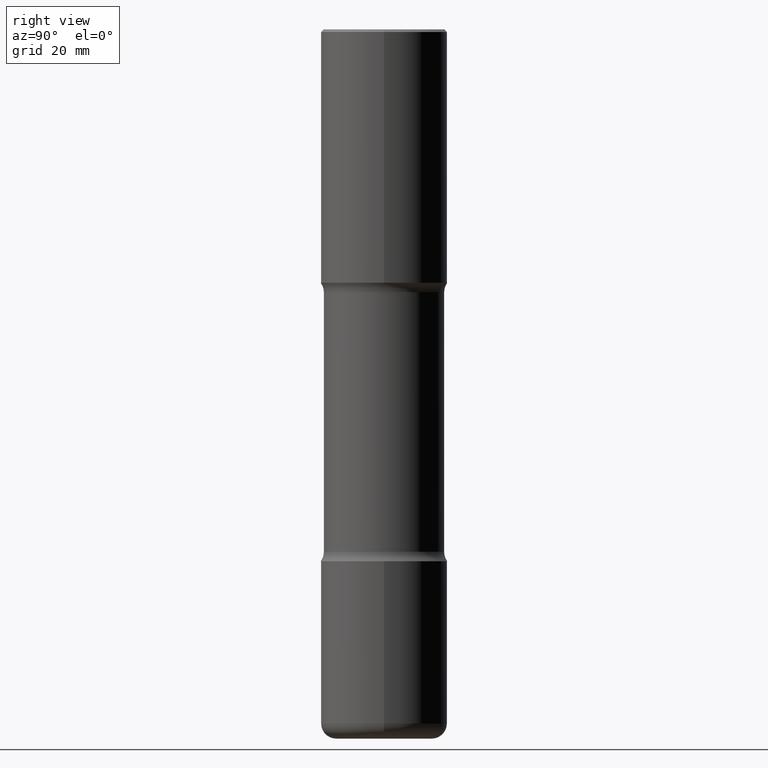
[diagram: clean part render]
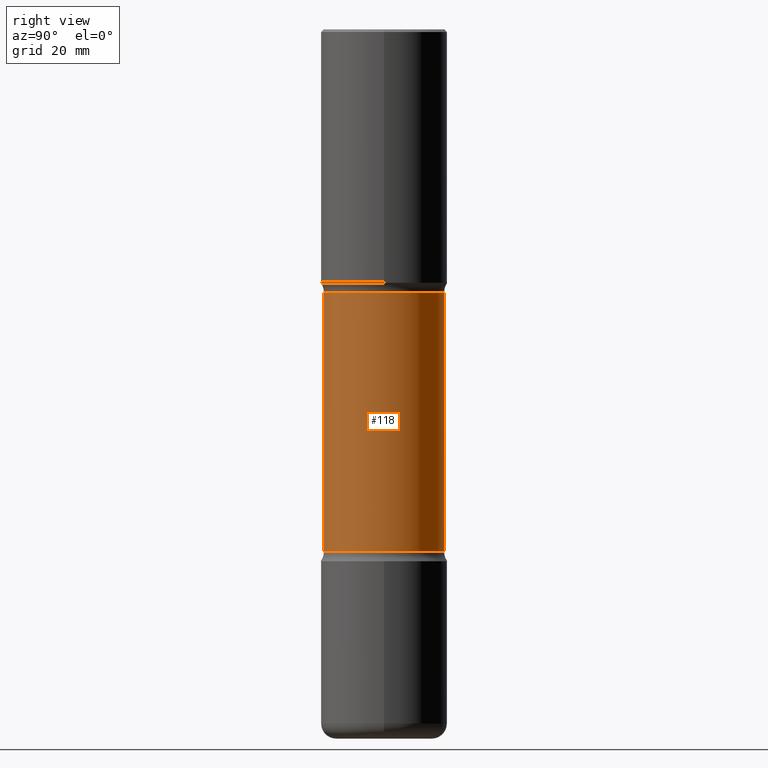
[diagram: same view with one face highlighted and labeled with its STEP entity id]
A machine part, right view. The second image highlights one B-rep face of the part: STEP entity #118.
In plain terms, the highlighted cylindrical surface (partial cylindrical patch) has radius 11.8745 mm, axis along (0, -0, -1).
Its self-contained STEP definition (entity closure, byte-faithful):
#17 = VERTEX_POINT ( 'NONE', #548 ) ;
#40 = AXIS2_PLACEMENT_3D ( 'NONE', #153, #103, #156 ) ;
#43 = FACE_OUTER_BOUND ( 'NONE', #329, .T. ) ;
#86 = AXIS2_PLACEMENT_3D ( 'NONE', #377, #328, #503 ) ;
#103 = DIRECTION ( 'NONE',  ( 2.569765813720951550E-29, -3.313480949505536246E-15, -1.000000000000000000 ) ) ;
#108 = CIRCLE ( 'NONE', #40, 0.4675000000000001932 ) ;
#118 = ADVANCED_FACE ( 'NONE', ( #43 ), #486, .T. ) ;
#146 = LINE ( 'NONE', #181, #382 ) ;
#153 = CARTESIAN_POINT ( 'NONE',  ( 4.736292380389705471E-29, -7.505362474776508302E-15, -2.043031050576253893 ) ) ;
#156 = DIRECTION ( 'NONE',  ( 6.982962677686265133E-15, 1.000000000000000000, -3.506115072082475215E-15 ) ) ;
#163 = EDGE_CURVE ( 'NONE', #17, #414, #223, .T. ) ;
#165 = VERTEX_POINT ( 'NONE', #305 ) ;
#178 = CIRCLE ( 'NONE', #86, 0.4674999999999999156 ) ;
#181 = CARTESIAN_POINT ( 'NONE',  ( -3.207282813958054974E-15, -0.4675000000000190670, -5.511799999999999145 ) ) ;
#223 = LINE ( 'NONE', #303, #288 ) ;
#230 = DIRECTION ( 'NONE',  ( 2.569765813720951550E-29, -3.313480949505536246E-15, -1.000000000000000000 ) ) ;
#236 = ORIENTED_EDGE ( 'NONE', *, *, #455, .F. ) ;
#284 = ORIENTED_EDGE ( 'NONE', *, *, #527, .T. ) ;
#288 = VECTOR ( 'NONE', #230, 39.37007874015748143 ) ;
#290 = VERTEX_POINT ( 'NONE', #417 ) ;
#303 = CARTESIAN_POINT ( 'NONE',  ( 3.264535051818466476E-15, 0.4674999999999810973, -5.511800000000000921 ) ) ;
#305 = CARTESIAN_POINT ( 'NONE',  ( -3.291838451780682059E-15, -0.4675000000000077982, -2.043031050576252117 ) ) ;
#313 = DIRECTION ( 'NONE',  ( 2.569765813720951550E-29, -3.313480949505536246E-15, -1.000000000000000000 ) ) ;
#328 = DIRECTION ( 'NONE',  ( 2.569765813720951550E-29, -3.313480949505536246E-15, -1.000000000000000000 ) ) ;
#329 = EDGE_LOOP ( 'NONE', ( #409, #284, #236, #369 ) ) ;
#330 = EDGE_CURVE ( 'NONE', #17, #165, #108, .T. ) ;
#337 = CARTESIAN_POINT ( 'NONE',  ( 3.264535051818428216E-15, 0.4674999999999857048, -4.059268949423748829 ) ) ;
#343 = DIRECTION ( 'NONE',  ( 2.569765813720951550E-29, -3.313480949505536246E-15, -1.000000000000000000 ) ) ;
#369 = ORIENTED_EDGE ( 'NONE', *, *, #163, .F. ) ;
#377 = CARTESIAN_POINT ( 'NONE',  ( 9.917551605176555751E-29, -1.418612834227874970E-14, -4.059268949423747053 ) ) ;
#382 = VECTOR ( 'NONE', #343, 39.37007874015748143 ) ;
#409 = ORIENTED_EDGE ( 'NONE', *, *, #330, .T. ) ;
#414 = VERTEX_POINT ( 'NONE', #337 ) ;
#417 = CARTESIAN_POINT ( 'NONE',  ( -3.291838451780624078E-15, -0.4675000000000141265, -4.059268949423745276 ) ) ;
#445 = CARTESIAN_POINT ( 'NONE',  ( 1.365021624231558916E-28, -1.899906230692842285E-14, -5.511800000000000033 ) ) ;
#455 = EDGE_CURVE ( 'NONE', #414, #290, #178, .T. ) ;
#486 = CYLINDRICAL_SURFACE ( 'NONE', #556, 0.4675000000000000822 ) ;
#503 = DIRECTION ( 'NONE',  ( 6.982962677686266711E-15, 1.000000000000000000, -3.506115072082477581E-15 ) ) ;
#522 = DIRECTION ( 'NONE',  ( 6.982962677686265922E-15, 1.000000000000000000, -2.337410048054984002E-15 ) ) ;
#527 = EDGE_CURVE ( 'NONE', #165, #290, #146, .T. ) ;
#548 = CARTESIAN_POINT ( 'NONE',  ( 3.264535051818378123E-15, 0.4674999999999926992, -2.043031050576255669 ) ) ;
#556 = AXIS2_PLACEMENT_3D ( 'NONE', #445, #313, #522 ) ;